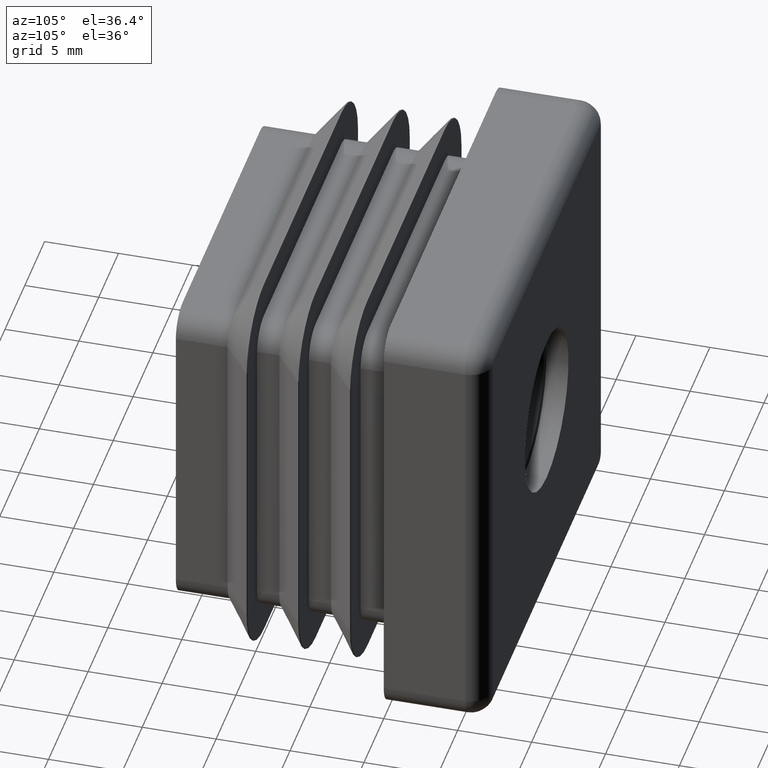
[diagram: clean part render]
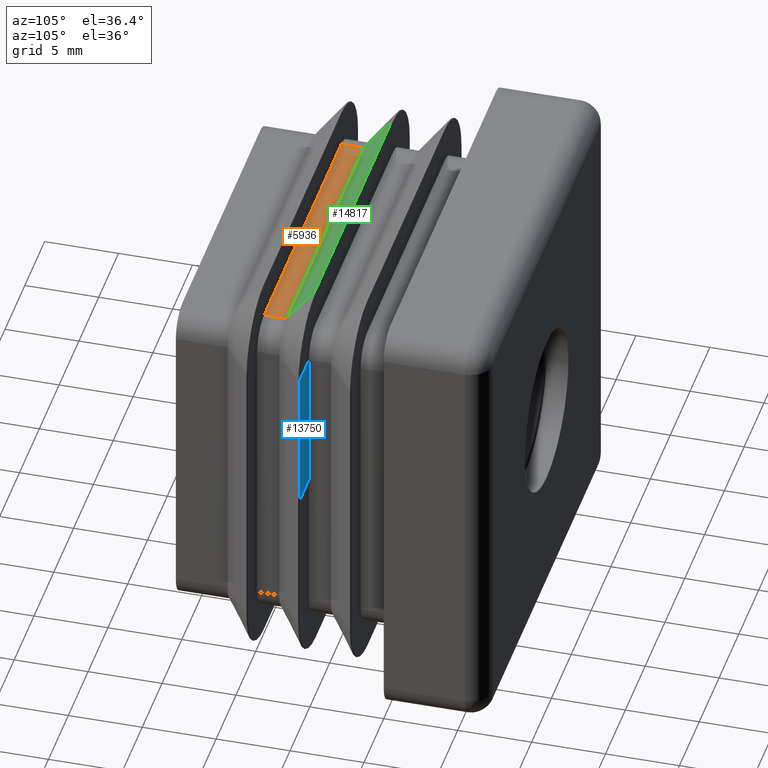
[diagram: same view with three faces highlighted in distinct colors, each labeled with its STEP entity id]
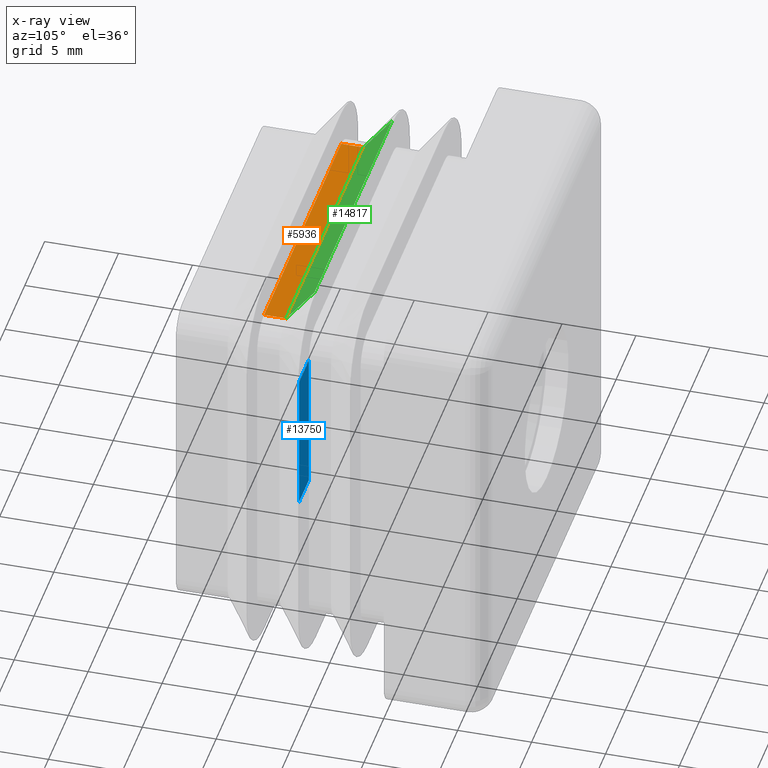
[diagram: x-ray of the same camera — body ghosted, the three highlighted faces saturated]
A machine part, auxiliary view with three faces highlighted in distinct colors.
The next image is the same camera in x-ray (body ghosted, the three faces saturated) — at least one of them is partly hidden behind the body in this view.
Their STEP definitions:

[orange] entity #5936 — the highlighted planar face has unit normal (0, 0, -1).
#271 = VERTEX_POINT ( 'NONE', #13297 ) ;
#1206 = CARTESIAN_POINT ( 'NONE',  ( -9.750000000000003553, -8.000000000000026645, 11.50000000000000000 ) ) ;
#1888 = PLANE ( 'NONE',  #14099 ) ;
#1982 = VECTOR ( 'NONE', #16047, 1000.000000000000000 ) ;
#2259 = ORIENTED_EDGE ( 'NONE', *, *, #12333, .T. ) ;
#2958 = VECTOR ( 'NONE', #16313, 1000.000000000000000 ) ;
#3581 = LINE ( 'NONE', #5476, #11565 ) ;
#4076 = CARTESIAN_POINT ( 'NONE',  ( 9.749999999999994671, -9.500000000000000000, 11.50000000000007283 ) ) ;
#5476 = CARTESIAN_POINT ( 'NONE',  ( 9.749999999999994671, -15.00000000000000000, 11.50000000000000000 ) ) ;
#5936 = ADVANCED_FACE ( 'NONE', ( #18766 ), #1888, .F. ) ;
#7043 = DIRECTION ( 'NONE',  ( 0.000000000000000000, 1.000000000000000000, 0.000000000000000000 ) ) ;
#7100 = CARTESIAN_POINT ( 'NONE',  ( 9.749999999999994671, -8.000000000000000000, 11.50000000000003375 ) ) ;
#7248 = EDGE_CURVE ( 'NONE', #12033, #19713, #9167, .T. ) ;
#7509 = EDGE_CURVE ( 'NONE', #12033, #271, #3581, .T. ) ;
#8419 = DIRECTION ( 'NONE',  ( -1.000000000000000000, 0.000000000000000000, -0.000000000000000000 ) ) ;
#8783 = LINE ( 'NONE', #21426, #2958 ) ;
#9167 = LINE ( 'NONE', #12567, #1982 ) ;
#10296 = CARTESIAN_POINT ( 'NONE',  ( -11.50000000000000355, -15.00000000000000000, 11.50000000000000000 ) ) ;
#11477 = ORIENTED_EDGE ( 'NONE', *, *, #7248, .F. ) ;
#11565 = VECTOR ( 'NONE', #7043, 1000.000000000000000 ) ;
#12033 = VERTEX_POINT ( 'NONE', #4076 ) ;
#12333 = EDGE_CURVE ( 'NONE', #271, #16702, #16771, .T. ) ;
#12499 = EDGE_CURVE ( 'NONE', #16702, #19713, #8783, .T. ) ;
#12567 = CARTESIAN_POINT ( 'NONE',  ( 9.749999999999994671, -9.500000000000000000, 11.50000000000007105 ) ) ;
#12592 = ORIENTED_EDGE ( 'NONE', *, *, #7509, .T. ) ;
#13297 = CARTESIAN_POINT ( 'NONE',  ( 9.749999999999994671, -8.000000000000028422, 11.50000000000000000 ) ) ;
#14099 = AXIS2_PLACEMENT_3D ( 'NONE', #10296, #15484, #8419 ) ;
#15181 = CARTESIAN_POINT ( 'NONE',  ( -9.750000000000003553, -9.500000000000000000, 11.50000000000000000 ) ) ;
#15340 = DIRECTION ( 'NONE',  ( -1.000000000000000000, -0.000000000000000000, -0.000000000000000000 ) ) ;
#15484 = DIRECTION ( 'NONE',  ( 0.000000000000000000, 0.000000000000000000, -1.000000000000000000 ) ) ;
#16047 = DIRECTION ( 'NONE',  ( -1.000000000000000000, -0.000000000000000000, -0.000000000000000000 ) ) ;
#16313 = DIRECTION ( 'NONE',  ( -0.000000000000000000, -1.000000000000000000, -0.000000000000000000 ) ) ;
#16702 = VERTEX_POINT ( 'NONE', #1206 ) ;
#16771 = LINE ( 'NONE', #7100, #18876 ) ;
#16906 = ORIENTED_EDGE ( 'NONE', *, *, #12499, .T. ) ;
#18766 = FACE_OUTER_BOUND ( 'NONE', #20220, .T. ) ;
#18876 = VECTOR ( 'NONE', #15340, 1000.000000000000000 ) ;
#19713 = VERTEX_POINT ( 'NONE', #15181 ) ;
#20220 = EDGE_LOOP ( 'NONE', ( #16906, #11477, #12592, #2259 ) ) ;
#21426 = CARTESIAN_POINT ( 'NONE',  ( -9.750000000000003553, -15.00000000000000000, 11.50000000000000000 ) ) ;

[blue] entity #13750 — the highlighted planar face has unit normal (-0, 1, -0).
#116 = ORIENTED_EDGE ( 'NONE', *, *, #9274, .F. ) ;
#1547 = ORIENTED_EDGE ( 'NONE', *, *, #8990, .F. ) ;
#2745 = VECTOR ( 'NONE', #5113, 1000.000000000000000 ) ;
#2955 = LINE ( 'NONE', #17259, #15172 ) ;
#4191 = EDGE_CURVE ( 'NONE', #20776, #13409, #14584, .T. ) ;
#5113 = DIRECTION ( 'NONE',  ( -1.000000000000000000, -3.540251991789388599E-16, 0.000000000000000000 ) ) ;
#5320 = CARTESIAN_POINT ( 'NONE',  ( 11.50000000000003020, -6.000000000000000000, 9.750000000000000000 ) ) ;
#5469 = DIRECTION ( 'NONE',  ( -1.000000000000000000, -3.540251991789388599E-16, 0.000000000000000000 ) ) ;
#6487 = LINE ( 'NONE', #20154, #14985 ) ;
#7254 = DIRECTION ( 'NONE',  ( -1.000000000000000000, -3.540251991789388599E-16, 0.000000000000000000 ) ) ;
#7528 = LINE ( 'NONE', #5320, #2745 ) ;
#7994 = DIRECTION ( 'NONE',  ( -1.779203565104417868E-16, -0.000000000000000000, 1.000000000000000000 ) ) ;
#8587 = VERTEX_POINT ( 'NONE', #9278 ) ;
#8749 = CARTESIAN_POINT ( 'NONE',  ( 11.49999999999999822, -6.000000000000000000, 0.000000000000000000 ) ) ;
#8990 = EDGE_CURVE ( 'NONE', #10684, #13409, #7528, .T. ) ;
#9274 = EDGE_CURVE ( 'NONE', #8587, #10684, #6487, .T. ) ;
#9278 = CARTESIAN_POINT ( 'NONE',  ( 13.95000000000004192, -5.999999999999998224, 0.000000000000000000 ) ) ;
#9309 = EDGE_LOOP ( 'NONE', ( #13229, #1547, #116, #11534 ) ) ;
#10069 = VECTOR ( 'NONE', #7994, 1000.000000000000000 ) ;
#10684 = VERTEX_POINT ( 'NONE', #11771 ) ;
#11187 = EDGE_CURVE ( 'NONE', #8587, #20776, #2955, .T. ) ;
#11534 = ORIENTED_EDGE ( 'NONE', *, *, #11187, .T. ) ;
#11771 = CARTESIAN_POINT ( 'NONE',  ( 13.95000000000004015, -5.999999999999998224, 9.750000000000000000 ) ) ;
#13229 = ORIENTED_EDGE ( 'NONE', *, *, #4191, .T. ) ;
#13409 = VERTEX_POINT ( 'NONE', #15815 ) ;
#13750 = ADVANCED_FACE ( 'NONE', ( #20326 ), #13945, .T. ) ;
#13945 = PLANE ( 'NONE',  #19734 ) ;
#14584 = LINE ( 'NONE', #19812, #10069 ) ;
#14985 = VECTOR ( 'NONE', #15189, 1000.000000000000000 ) ;
#15172 = VECTOR ( 'NONE', #7254, 1000.000000000000000 ) ;
#15189 = DIRECTION ( 'NONE',  ( -1.779203565104417868E-16, -0.000000000000000000, 1.000000000000000000 ) ) ;
#15815 = CARTESIAN_POINT ( 'NONE',  ( 11.49999999999999645, -6.000000000000000000, 9.750000000000000000 ) ) ;
#17259 = CARTESIAN_POINT ( 'NONE',  ( 11.50000000000003197, -6.000000000000000000, 0.000000000000000000 ) ) ;
#17335 = DIRECTION ( 'NONE',  ( -3.540251991789388599E-16, 1.000000000000000000, -6.298828965159697262E-32 ) ) ;
#19199 = CARTESIAN_POINT ( 'NONE',  ( 11.50000000000003197, -6.000000000000000000, 0.000000000000000000 ) ) ;
#19734 = AXIS2_PLACEMENT_3D ( 'NONE', #19199, #17335, #5469 ) ;
#19812 = CARTESIAN_POINT ( 'NONE',  ( 11.50000000000003197, -6.000000000000000000, 0.000000000000000000 ) ) ;
#20154 = CARTESIAN_POINT ( 'NONE',  ( 13.95000000000004192, -5.999999999999998224, 0.000000000000000000 ) ) ;
#20326 = FACE_OUTER_BOUND ( 'NONE', #9309, .T. ) ;
#20776 = VERTEX_POINT ( 'NONE', #8749 ) ;

[green] entity #14817 — the highlighted planar face has unit normal (0, -0.7923, 0.6102).
#271 = VERTEX_POINT ( 'NONE', #13297 ) ;
#789 = LINE ( 'NONE', #14991, #16198 ) ;
#796 = PLANE ( 'NONE',  #13212 ) ;
#1206 = CARTESIAN_POINT ( 'NONE',  ( -9.750000000000003553, -8.000000000000026645, 11.50000000000000000 ) ) ;
#2582 = DIRECTION ( 'NONE',  ( 0.000000000000000000, -0.7922683712577375248, 0.6101727852867676605 ) ) ;
#2774 = EDGE_LOOP ( 'NONE', ( #11591, #11964, #19787, #10406 ) ) ;
#2806 = EDGE_CURVE ( 'NONE', #16702, #11692, #789, .T. ) ;
#4562 = EDGE_CURVE ( 'NONE', #14375, #11692, #18802, .T. ) ;
#4875 = DIRECTION ( 'NONE',  ( 1.409606710661237256E-16, 0.6101727852867675495, 0.7922683712577375248 ) ) ;
#5943 = LINE ( 'NONE', #21944, #13912 ) ;
#7100 = CARTESIAN_POINT ( 'NONE',  ( 9.749999999999994671, -8.000000000000000000, 11.50000000000003375 ) ) ;
#9304 = EDGE_CURVE ( 'NONE', #271, #14375, #5943, .T. ) ;
#9439 = CARTESIAN_POINT ( 'NONE',  ( 9.749999999999994671, -6.089613418562888292, 13.98050863926438581 ) ) ;
#10406 = ORIENTED_EDGE ( 'NONE', *, *, #9304, .T. ) ;
#10987 = CARTESIAN_POINT ( 'NONE',  ( 9.749999999999994671, -6.089613418562888292, 13.98050863926438403 ) ) ;
#11087 = CARTESIAN_POINT ( 'NONE',  ( -9.750000000000001776, -6.089613418562888292, 13.98050863926438403 ) ) ;
#11591 = ORIENTED_EDGE ( 'NONE', *, *, #4562, .T. ) ;
#11641 = VECTOR ( 'NONE', #19553, 1000.000000000000000 ) ;
#11692 = VERTEX_POINT ( 'NONE', #11087 ) ;
#11964 = ORIENTED_EDGE ( 'NONE', *, *, #2806, .F. ) ;
#12333 = EDGE_CURVE ( 'NONE', #271, #16702, #16771, .T. ) ;
#12961 = CARTESIAN_POINT ( 'NONE',  ( 9.749999999999994671, -6.089613418562888292, 13.98050863926438403 ) ) ;
#13212 = AXIS2_PLACEMENT_3D ( 'NONE', #10987, #2582, #19220 ) ;
#13297 = CARTESIAN_POINT ( 'NONE',  ( 9.749999999999994671, -8.000000000000028422, 11.50000000000000000 ) ) ;
#13912 = VECTOR ( 'NONE', #15327, 1000.000000000000114 ) ;
#14375 = VERTEX_POINT ( 'NONE', #9439 ) ;
#14817 = ADVANCED_FACE ( 'NONE', ( #19511 ), #796, .T. ) ;
#14991 = CARTESIAN_POINT ( 'NONE',  ( -9.750000000000001776, -6.089613418562888292, 13.98050863926438403 ) ) ;
#15327 = DIRECTION ( 'NONE',  ( 1.409606710661237009E-16, 0.6101727852867675495, 0.7922683712577375248 ) ) ;
#15340 = DIRECTION ( 'NONE',  ( -1.000000000000000000, -0.000000000000000000, -0.000000000000000000 ) ) ;
#16198 = VECTOR ( 'NONE', #4875, 1000.000000000000114 ) ;
#16702 = VERTEX_POINT ( 'NONE', #1206 ) ;
#16771 = LINE ( 'NONE', #7100, #18876 ) ;
#18802 = LINE ( 'NONE', #12961, #11641 ) ;
#18876 = VECTOR ( 'NONE', #15340, 1000.000000000000000 ) ;
#19220 = DIRECTION ( 'NONE',  ( 0.000000000000000000, -0.6101727852867676605, -0.7922683712577375248 ) ) ;
#19511 = FACE_OUTER_BOUND ( 'NONE', #2774, .T. ) ;
#19553 = DIRECTION ( 'NONE',  ( -1.000000000000000000, -0.000000000000000000, -0.000000000000000000 ) ) ;
#19787 = ORIENTED_EDGE ( 'NONE', *, *, #12333, .F. ) ;
#21944 = CARTESIAN_POINT ( 'NONE',  ( 9.749999999999994671, -6.089613418562888292, 13.98050863926438403 ) ) ;